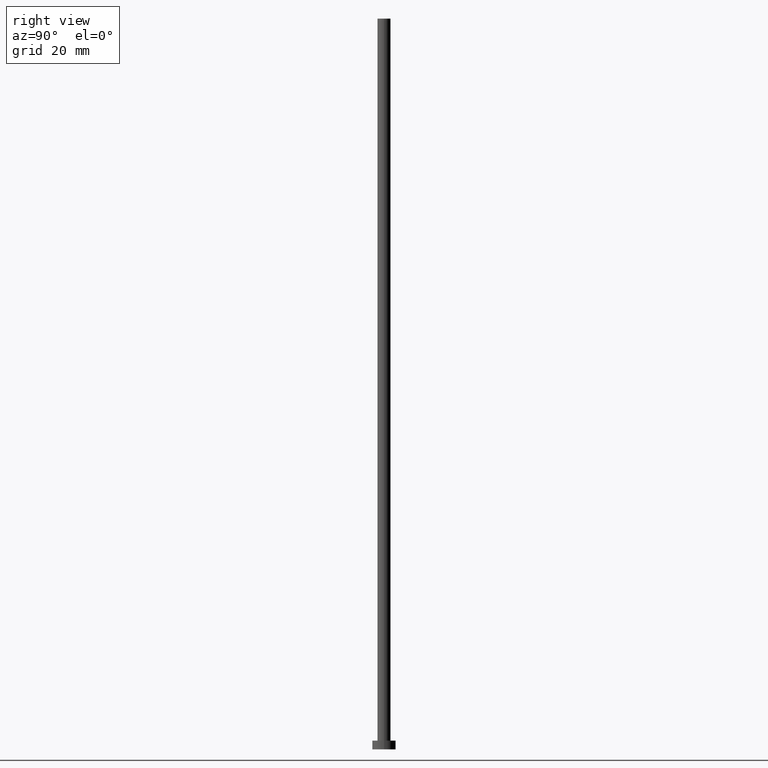
[diagram: clean part render]
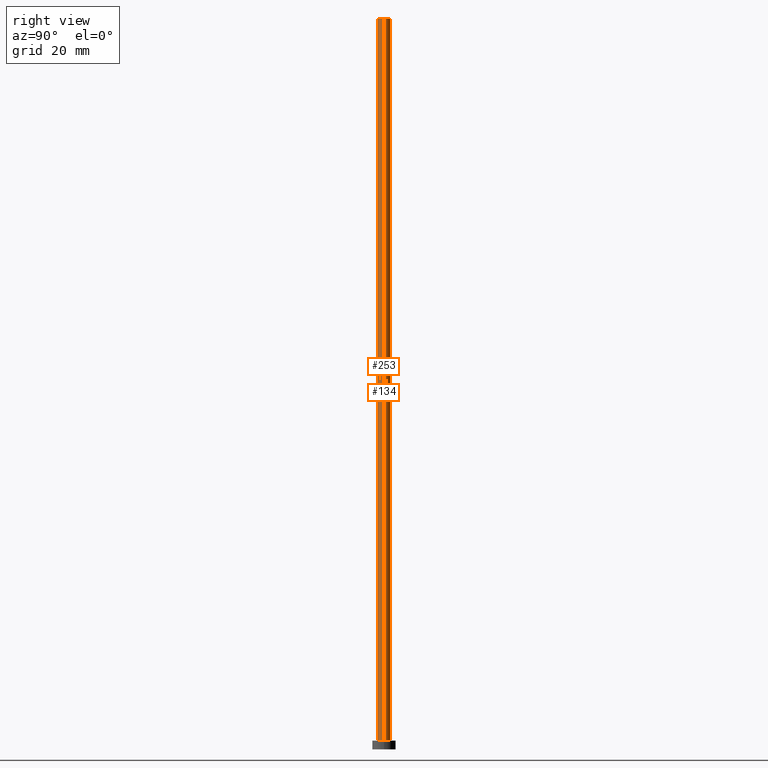
[diagram: same view with one multi-face feature highlighted, each face labeled with its STEP entity id]
A machine part, right view. The highlighted faces form ONE feature: a constant-radius fillet chain: 2 tangent blend faces with common blend radius 2.25 mm. The faces share edges in the B-rep.
Their STEP definitions:
[1] entity #134 (Cylinder):
#6 = CARTESIAN_POINT ( 'NONE',  ( 0.000000000000000000, 0.000000000000000000, 250.0000000000000000 ) ) ;
#10 = EDGE_CURVE ( 'NONE', #94, #254, #108, .T. ) ;
#21 = CARTESIAN_POINT ( 'NONE',  ( 0.000000000000000000, 0.000000000000000000, 250.0000000000000000 ) ) ;
#25 = CARTESIAN_POINT ( 'NONE',  ( 2.250000000000000000, 2.755455298081544285E-16, 250.0000000000000000 ) ) ;
#33 = EDGE_CURVE ( 'NONE', #98, #254, #66, .T. ) ;
#43 = CARTESIAN_POINT ( 'NONE',  ( 2.250000000000000000, 2.755455298081544285E-16, 3.000000000000000000 ) ) ;
#58 = DIRECTION ( 'NONE',  ( 1.000000000000000000, 0.000000000000000000, 0.000000000000000000 ) ) ;
#61 = DIRECTION ( 'NONE',  ( 0.000000000000000000, 0.000000000000000000, 1.000000000000000000 ) ) ;
#63 = DIRECTION ( 'NONE',  ( 1.000000000000000000, 0.000000000000000000, 0.000000000000000000 ) ) ;
#65 = DIRECTION ( 'NONE',  ( -0.000000000000000000, -0.000000000000000000, -1.000000000000000000 ) ) ;
#66 = LINE ( 'NONE', #238, #68 ) ;
#68 = VECTOR ( 'NONE', #65, 1000.000000000000000 ) ;
#78 = ORIENTED_EDGE ( 'NONE', *, *, #198, .T. ) ;
#82 = DIRECTION ( 'NONE',  ( -0.000000000000000000, -0.000000000000000000, -1.000000000000000000 ) ) ;
#84 = EDGE_CURVE ( 'NONE', #139, #98, #149, .T. ) ;
#93 = CARTESIAN_POINT ( 'NONE',  ( -2.250000000000000000, 0.000000000000000000, 3.000000000000000000 ) ) ;
#94 = VERTEX_POINT ( 'NONE', #43 ) ;
#98 = VERTEX_POINT ( 'NONE', #203 ) ;
#100 = LINE ( 'NONE', #25, #247 ) ;
#106 = DIRECTION ( 'NONE',  ( -1.000000000000000000, 0.000000000000000000, 0.000000000000000000 ) ) ;
#107 = CYLINDRICAL_SURFACE ( 'NONE', #185, 2.250000000000000000 ) ;
#108 = CIRCLE ( 'NONE', #201, 2.250000000000000000 ) ;
#119 = ORIENTED_EDGE ( 'NONE', *, *, #84, .F. ) ;
#125 = DIRECTION ( 'NONE',  ( -0.000000000000000000, -0.000000000000000000, -1.000000000000000000 ) ) ;
#127 = CARTESIAN_POINT ( 'NONE',  ( 2.250000000000000000, 2.755455298081544285E-16, 250.0000000000000000 ) ) ;
#134 = ADVANCED_FACE ( 'NONE', ( #218 ), #107, .T. ) ;
#139 = VERTEX_POINT ( 'NONE', #127 ) ;
#149 = CIRCLE ( 'NONE', #211, 2.250000000000000000 ) ;
#156 = ORIENTED_EDGE ( 'NONE', *, *, #33, .F. ) ;
#171 = EDGE_LOOP ( 'NONE', ( #119, #78, #194, #156 ) ) ;
#185 = AXIS2_PLACEMENT_3D ( 'NONE', #21, #82, #106 ) ;
#194 = ORIENTED_EDGE ( 'NONE', *, *, #10, .T. ) ;
#198 = EDGE_CURVE ( 'NONE', #139, #94, #100, .T. ) ;
#200 = DIRECTION ( 'NONE',  ( 0.000000000000000000, 0.000000000000000000, 1.000000000000000000 ) ) ;
#201 = AXIS2_PLACEMENT_3D ( 'NONE', #252, #61, #58 ) ;
#203 = CARTESIAN_POINT ( 'NONE',  ( -2.250000000000000000, 0.000000000000000000, 250.0000000000000000 ) ) ;
#211 = AXIS2_PLACEMENT_3D ( 'NONE', #6, #200, #63 ) ;
#218 = FACE_OUTER_BOUND ( 'NONE', #171, .T. ) ;
#238 = CARTESIAN_POINT ( 'NONE',  ( -2.250000000000000000, 0.000000000000000000, 250.0000000000000000 ) ) ;
#247 = VECTOR ( 'NONE', #125, 1000.000000000000000 ) ;
#252 = CARTESIAN_POINT ( 'NONE',  ( 0.000000000000000000, 0.000000000000000000, 3.000000000000000000 ) ) ;
#254 = VERTEX_POINT ( 'NONE', #93 ) ;
[2] entity #253 (Cylinder):
#1 = DIRECTION ( 'NONE',  ( -0.000000000000000000, -0.000000000000000000, -1.000000000000000000 ) ) ;
#8 = EDGE_CURVE ( 'NONE', #98, #139, #167, .T. ) ;
#22 = CYLINDRICAL_SURFACE ( 'NONE', #105, 2.250000000000000000 ) ;
#25 = CARTESIAN_POINT ( 'NONE',  ( 2.250000000000000000, 2.755455298081544285E-16, 250.0000000000000000 ) ) ;
#29 = EDGE_CURVE ( 'NONE', #254, #94, #159, .T. ) ;
#33 = EDGE_CURVE ( 'NONE', #98, #254, #66, .T. ) ;
#43 = CARTESIAN_POINT ( 'NONE',  ( 2.250000000000000000, 2.755455298081544285E-16, 3.000000000000000000 ) ) ;
#59 = CARTESIAN_POINT ( 'NONE',  ( 0.000000000000000000, 0.000000000000000000, 250.0000000000000000 ) ) ;
#65 = DIRECTION ( 'NONE',  ( -0.000000000000000000, -0.000000000000000000, -1.000000000000000000 ) ) ;
#66 = LINE ( 'NONE', #238, #68 ) ;
#68 = VECTOR ( 'NONE', #65, 1000.000000000000000 ) ;
#75 = ORIENTED_EDGE ( 'NONE', *, *, #29, .T. ) ;
#85 = DIRECTION ( 'NONE',  ( 1.000000000000000000, 0.000000000000000000, 0.000000000000000000 ) ) ;
#93 = CARTESIAN_POINT ( 'NONE',  ( -2.250000000000000000, 0.000000000000000000, 3.000000000000000000 ) ) ;
#94 = VERTEX_POINT ( 'NONE', #43 ) ;
#98 = VERTEX_POINT ( 'NONE', #203 ) ;
#100 = LINE ( 'NONE', #25, #247 ) ;
#105 = AXIS2_PLACEMENT_3D ( 'NONE', #180, #1, #160 ) ;
#118 = AXIS2_PLACEMENT_3D ( 'NONE', #59, #153, #231 ) ;
#125 = DIRECTION ( 'NONE',  ( -0.000000000000000000, -0.000000000000000000, -1.000000000000000000 ) ) ;
#126 = AXIS2_PLACEMENT_3D ( 'NONE', #197, #217, #85 ) ;
#127 = CARTESIAN_POINT ( 'NONE',  ( 2.250000000000000000, 2.755455298081544285E-16, 250.0000000000000000 ) ) ;
#139 = VERTEX_POINT ( 'NONE', #127 ) ;
#143 = FACE_OUTER_BOUND ( 'NONE', #229, .T. ) ;
#153 = DIRECTION ( 'NONE',  ( 0.000000000000000000, 0.000000000000000000, 1.000000000000000000 ) ) ;
#154 = ORIENTED_EDGE ( 'NONE', *, *, #33, .T. ) ;
#159 = CIRCLE ( 'NONE', #126, 2.250000000000000000 ) ;
#160 = DIRECTION ( 'NONE',  ( -1.000000000000000000, 0.000000000000000000, 0.000000000000000000 ) ) ;
#167 = CIRCLE ( 'NONE', #118, 2.250000000000000000 ) ;
#180 = CARTESIAN_POINT ( 'NONE',  ( 0.000000000000000000, 0.000000000000000000, 250.0000000000000000 ) ) ;
#193 = ORIENTED_EDGE ( 'NONE', *, *, #8, .F. ) ;
#197 = CARTESIAN_POINT ( 'NONE',  ( 0.000000000000000000, 0.000000000000000000, 3.000000000000000000 ) ) ;
#198 = EDGE_CURVE ( 'NONE', #139, #94, #100, .T. ) ;
#203 = CARTESIAN_POINT ( 'NONE',  ( -2.250000000000000000, 0.000000000000000000, 250.0000000000000000 ) ) ;
#212 = ORIENTED_EDGE ( 'NONE', *, *, #198, .F. ) ;
#217 = DIRECTION ( 'NONE',  ( 0.000000000000000000, 0.000000000000000000, 1.000000000000000000 ) ) ;
#229 = EDGE_LOOP ( 'NONE', ( #212, #193, #154, #75 ) ) ;
#231 = DIRECTION ( 'NONE',  ( 1.000000000000000000, 0.000000000000000000, 0.000000000000000000 ) ) ;
#238 = CARTESIAN_POINT ( 'NONE',  ( -2.250000000000000000, 0.000000000000000000, 250.0000000000000000 ) ) ;
#247 = VECTOR ( 'NONE', #125, 1000.000000000000000 ) ;
#253 = ADVANCED_FACE ( 'NONE', ( #143 ), #22, .T. ) ;
#254 = VERTEX_POINT ( 'NONE', #93 ) ;